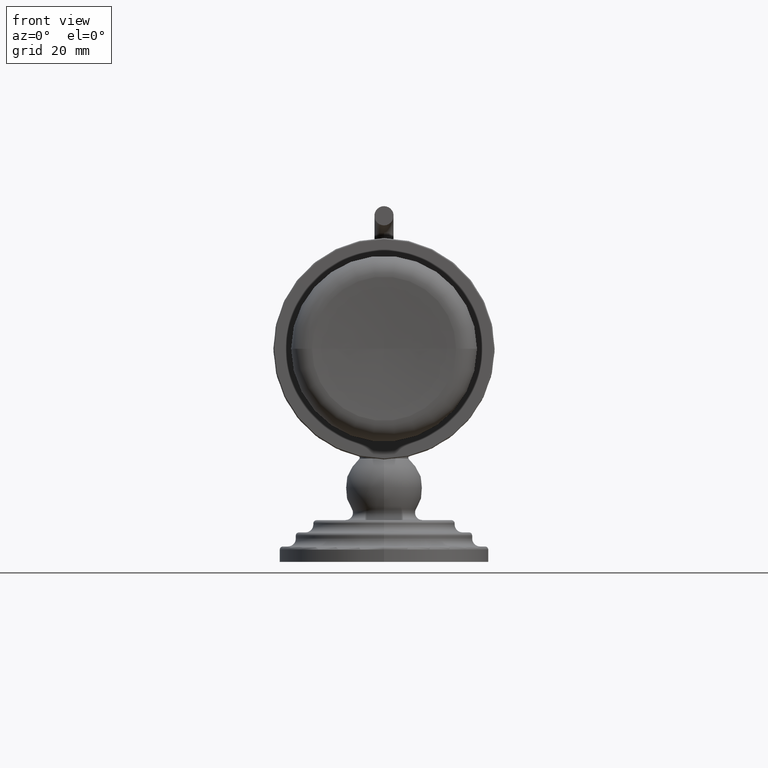
[diagram: clean part render]
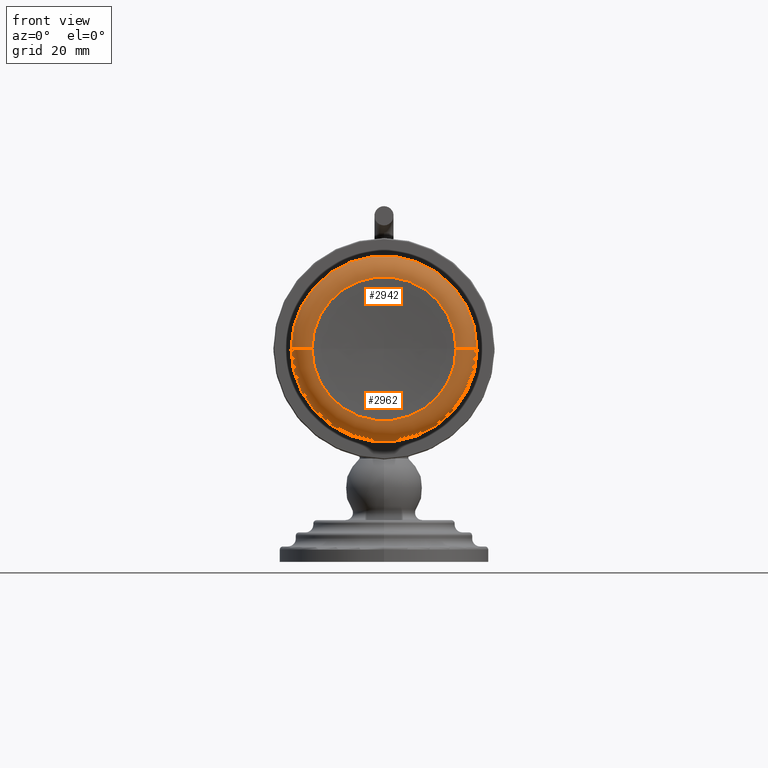
[diagram: same view with one multi-face feature highlighted, each face labeled with its STEP entity id]
A machine part, front view. The highlighted faces form ONE feature: a constant-radius fillet chain: 2 tangent blend faces with common blend radius 5.9944 mm. The faces share edges in the B-rep.
Their STEP definitions:
[1] entity #2942 (Torus):
#1425=CARTESIAN_POINT('',(0.E0,-3.560765226049E0,2.617E0));
#1426=DIRECTION('',(0.E0,1.E0,0.E0));
#1427=DIRECTION('',(-1.E0,0.E0,0.E0));
#1428=AXIS2_PLACEMENT_3D('',#1425,#1426,#1427);
#1440=CARTESIAN_POINT('',(-9.055E-1,-3.560765226049E0,2.617E0));
#1441=DIRECTION('',(-4.944794573802E-13,0.E0,1.E0));
#1442=DIRECTION('',(-1.E0,0.E0,-4.948960262312E-13));
#1443=AXIS2_PLACEMENT_3D('',#1440,#1441,#1442);
#1448=CARTESIAN_POINT('',(9.055E-1,-3.560765226049E0,2.617E0));
#1449=DIRECTION('',(4.943250669909E-13,0.E0,-1.E0));
#1450=DIRECTION('',(1.E0,0.E0,4.948960262312E-13));
#1451=AXIS2_PLACEMENT_3D('',#1448,#1449,#1450);
#1464=CARTESIAN_POINT('',(0.E0,-3.795839994320E0,2.617E0));
#1465=DIRECTION('',(0.E0,1.E0,0.E0));
#1466=DIRECTION('',(-1.E0,0.E0,0.E0));
#1467=AXIS2_PLACEMENT_3D('',#1464,#1465,#1466);
#1582=CARTESIAN_POINT('',(1.1415E0,-3.560765226049E0,2.617E0));
#1583=CARTESIAN_POINT('',(-1.1415E0,-3.560765226049E0,2.617E0));
#1584=VERTEX_POINT('',#1582);
#1585=VERTEX_POINT('',#1583);
#1586=CARTESIAN_POINT('',(8.846228995701E-1,-3.795839994320E0,2.617E0));
#1587=CARTESIAN_POINT('',(-8.846228995701E-1,-3.795839994320E0,2.617E0));
#1588=VERTEX_POINT('',#1586);
#1589=VERTEX_POINT('',#1587);
#2928=CARTESIAN_POINT('',(0.E0,-3.560765226049E0,2.617E0));
#2929=DIRECTION('',(0.E0,1.E0,0.E0));
#2930=DIRECTION('',(-9.999521828896E-1,0.E0,-9.779158155594E-3));
#2931=AXIS2_PLACEMENT_3D('',#2928,#2929,#2930);
#2932=TOROIDAL_SURFACE('',#2931,9.055E-1,2.36E-1);
#2933=ORIENTED_EDGE('',*,*,#2915,.T.);
#2935=ORIENTED_EDGE('',*,*,#2934,.T.);
#2937=ORIENTED_EDGE('',*,*,#2936,.F.);
#2939=ORIENTED_EDGE('',*,*,#2938,.F.);
#2940=EDGE_LOOP('',(#2933,#2935,#2937,#2939));
#2941=FACE_OUTER_BOUND('',#2940,.F.);
#1429=CIRCLE('',#1428,1.1415E0);
#1444=CIRCLE('',#1443,2.36E-1);
#1452=CIRCLE('',#1451,2.36E-1);
#1468=CIRCLE('',#1467,8.846228995701E-1);
#2915=EDGE_CURVE('',#1585,#1584,#1429,.T.);
#2934=EDGE_CURVE('',#1584,#1588,#1452,.T.);
#2936=EDGE_CURVE('',#1589,#1588,#1468,.T.);
#2938=EDGE_CURVE('',#1585,#1589,#1444,.T.);
#2942=ADVANCED_FACE('',(#2941),#2932,.T.);
[2] entity #2962 (Torus):
#1410=CARTESIAN_POINT('',(0.E0,-3.560765226049E0,2.617E0));
#1411=DIRECTION('',(0.E0,1.E0,0.E0));
#1412=DIRECTION('',(1.E0,0.E0,0.E0));
#1413=AXIS2_PLACEMENT_3D('',#1410,#1411,#1412);
#1440=CARTESIAN_POINT('',(-9.055E-1,-3.560765226049E0,2.617E0));
#1441=DIRECTION('',(-4.944794573802E-13,0.E0,1.E0));
#1442=DIRECTION('',(-1.E0,0.E0,-4.948960262312E-13));
#1443=AXIS2_PLACEMENT_3D('',#1440,#1441,#1442);
#1448=CARTESIAN_POINT('',(9.055E-1,-3.560765226049E0,2.617E0));
#1449=DIRECTION('',(4.943250669909E-13,0.E0,-1.E0));
#1450=DIRECTION('',(1.E0,0.E0,4.948960262312E-13));
#1451=AXIS2_PLACEMENT_3D('',#1448,#1449,#1450);
#1456=CARTESIAN_POINT('',(0.E0,-3.795839994320E0,2.617E0));
#1457=DIRECTION('',(0.E0,1.E0,0.E0));
#1458=DIRECTION('',(1.E0,0.E0,0.E0));
#1459=AXIS2_PLACEMENT_3D('',#1456,#1457,#1458);
#1582=CARTESIAN_POINT('',(1.1415E0,-3.560765226049E0,2.617E0));
#1583=CARTESIAN_POINT('',(-1.1415E0,-3.560765226049E0,2.617E0));
#1584=VERTEX_POINT('',#1582);
#1585=VERTEX_POINT('',#1583);
#1586=CARTESIAN_POINT('',(8.846228995701E-1,-3.795839994320E0,2.617E0));
#1587=CARTESIAN_POINT('',(-8.846228995701E-1,-3.795839994320E0,2.617E0));
#1588=VERTEX_POINT('',#1586);
#1589=VERTEX_POINT('',#1587);
#2950=CARTESIAN_POINT('',(0.E0,-3.560765226049E0,2.617E0));
#2951=DIRECTION('',(0.E0,1.E0,0.E0));
#2952=DIRECTION('',(9.999521828896E-1,0.E0,9.779158155594E-3));
#2953=AXIS2_PLACEMENT_3D('',#2950,#2951,#2952);
#2954=TOROIDAL_SURFACE('',#2953,9.055E-1,2.36E-1);
#2955=ORIENTED_EDGE('',*,*,#2894,.T.);
#2956=ORIENTED_EDGE('',*,*,#2938,.T.);
#2958=ORIENTED_EDGE('',*,*,#2957,.F.);
#2959=ORIENTED_EDGE('',*,*,#2934,.F.);
#2960=EDGE_LOOP('',(#2955,#2956,#2958,#2959));
#2961=FACE_OUTER_BOUND('',#2960,.F.);
#1414=CIRCLE('',#1413,1.1415E0);
#1444=CIRCLE('',#1443,2.36E-1);
#1452=CIRCLE('',#1451,2.36E-1);
#1460=CIRCLE('',#1459,8.846228995701E-1);
#2894=EDGE_CURVE('',#1584,#1585,#1414,.T.);
#2934=EDGE_CURVE('',#1584,#1588,#1452,.T.);
#2938=EDGE_CURVE('',#1585,#1589,#1444,.T.);
#2957=EDGE_CURVE('',#1588,#1589,#1460,.T.);
#2962=ADVANCED_FACE('',(#2961),#2954,.T.);